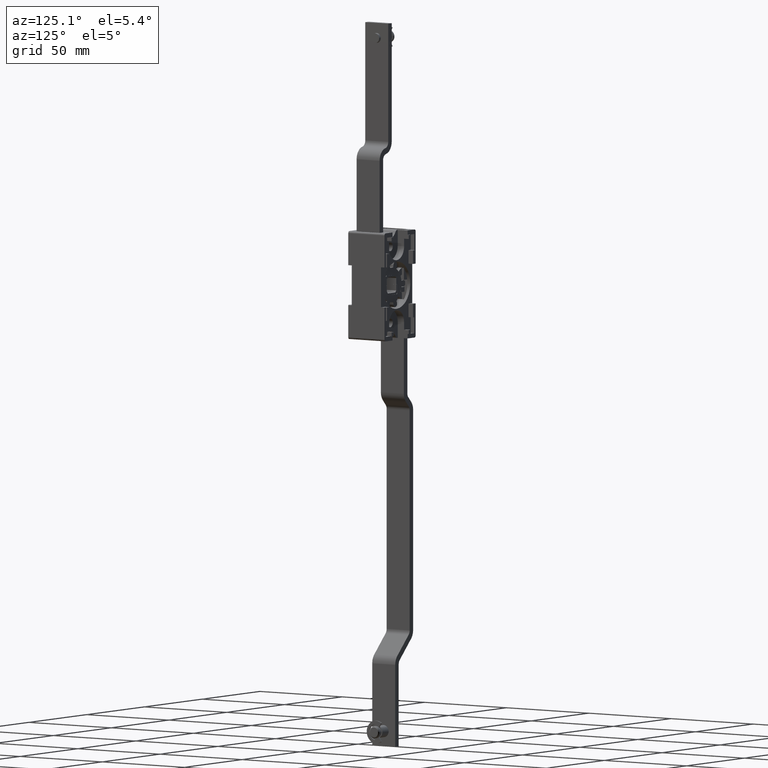
[diagram: clean part render]
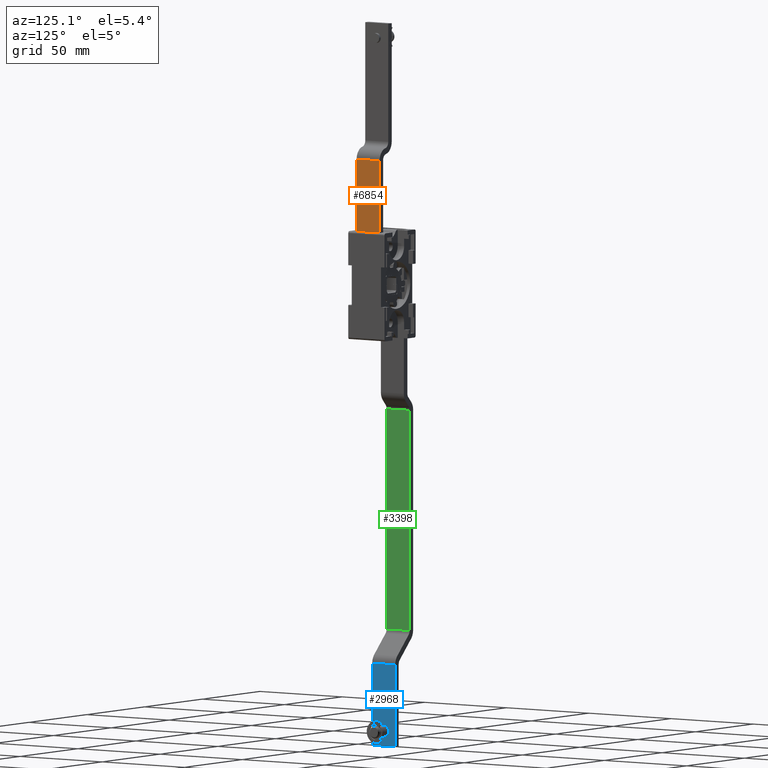
[diagram: same view with three faces highlighted in distinct colors, each labeled with its STEP entity id]
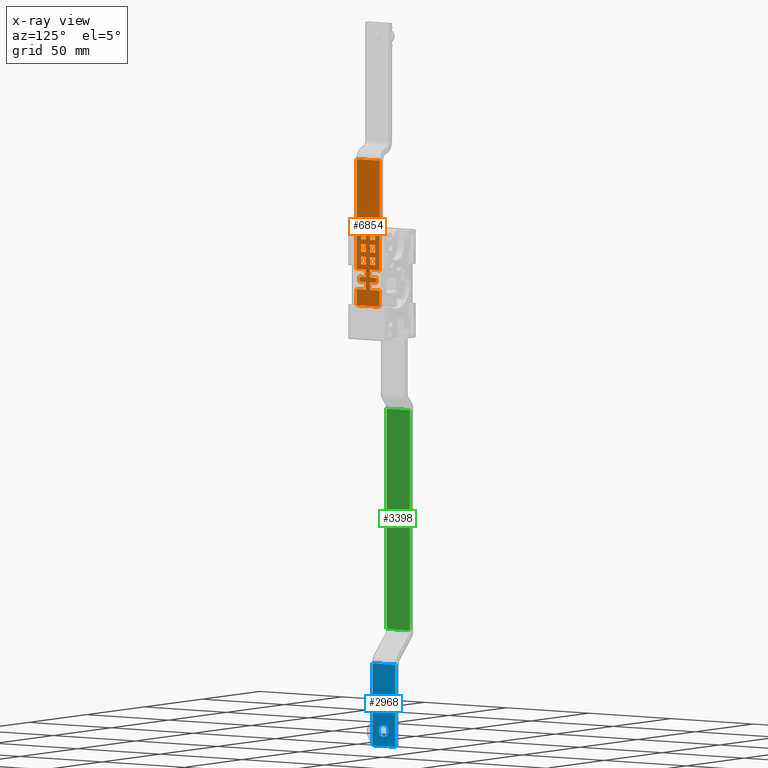
[diagram: x-ray of the same camera — body ghosted, the three highlighted faces saturated]
A machine part, auxiliary view with three faces highlighted in distinct colors.
The next image is the same camera in x-ray (body ghosted, the three faces saturated) — at least one of them is partly hidden behind the body in this view.
Their STEP definitions:

[orange] entity #6854 — the highlighted face is a freeform B-spline surface patch.
#4737=CARTESIAN_POINT('',(11.900000183740200,1.249999999999972,14.460006222166401));
#4738=VERTEX_POINT('',#4737);
#4739=CARTESIAN_POINT('',(11.900000183740159,1.250000000000000,10.660006222166400));
#4740=VERTEX_POINT('',#4739);
#4741=CARTESIAN_POINT('',(11.900000183740200,1.249999999999972,14.460006222166401));
#4742=CARTESIAN_POINT('',(11.900000183740159,1.250000000000000,10.660006222166400));
#4743=QUASI_UNIFORM_CURVE('',1,(#4741,#4742),.UNSPECIFIED.,.F.,.U.);
#4744=EDGE_CURVE('',#4738,#4740,#4743,.T.);
#4773=CARTESIAN_POINT('',(11.900000183740159,4.250000000000000,14.460006222166401));
#4774=VERTEX_POINT('',#4773);
#4775=CARTESIAN_POINT('',(11.900000183740159,4.250000000000000,14.460006222166401));
#4776=CARTESIAN_POINT('',(11.900000183740200,1.249999999999972,14.460006222166401));
#4777=QUASI_UNIFORM_CURVE('',1,(#4775,#4776),.UNSPECIFIED.,.F.,.U.);
#4778=EDGE_CURVE('',#4774,#4738,#4777,.T.);
#4801=CARTESIAN_POINT('',(11.900000183740159,4.250000000000000,10.660006222166400));
#4802=VERTEX_POINT('',#4801);
#4803=CARTESIAN_POINT('',(11.900000183740159,4.250000000000000,10.660006222166400));
#4804=CARTESIAN_POINT('',(11.900000183740159,4.250000000000000,14.460006222166401));
#4805=QUASI_UNIFORM_CURVE('',1,(#4803,#4804),.UNSPECIFIED.,.F.,.U.);
#4806=EDGE_CURVE('',#4802,#4774,#4805,.T.);
#4829=CARTESIAN_POINT('',(11.900000183740159,1.250000000000000,10.660006222166400));
#4830=CARTESIAN_POINT('',(11.900000183740159,4.250000000000000,10.660006222166400));
#4831=QUASI_UNIFORM_CURVE('',1,(#4829,#4830),.UNSPECIFIED.,.F.,.U.);
#4832=EDGE_CURVE('',#4740,#4802,#4831,.T.);
#4849=CARTESIAN_POINT('',(11.900000183740159,-4.250000000000000,10.660006222166400));
#4850=VERTEX_POINT('',#4849);
#4851=CARTESIAN_POINT('',(11.900000183740200,-4.250000000000000,14.460006222166401));
#4852=VERTEX_POINT('',#4851);
#4853=CARTESIAN_POINT('',(11.900000183740159,-4.250000000000000,10.660006222166400));
#4854=CARTESIAN_POINT('',(11.900000183740200,-4.250000000000000,14.460006222166401));
#4855=QUASI_UNIFORM_CURVE('',1,(#4853,#4854),.UNSPECIFIED.,.F.,.U.);
#4856=EDGE_CURVE('',#4850,#4852,#4855,.T.);
#4885=CARTESIAN_POINT('',(11.900000183740159,-1.250000000000000,10.660006222166400));
#4886=VERTEX_POINT('',#4885);
#4887=CARTESIAN_POINT('',(11.900000183740159,-1.250000000000000,10.660006222166400));
#4888=CARTESIAN_POINT('',(11.900000183740159,-4.250000000000000,10.660006222166400));
#4889=QUASI_UNIFORM_CURVE('',1,(#4887,#4888),.UNSPECIFIED.,.F.,.U.);
#4890=EDGE_CURVE('',#4886,#4850,#4889,.T.);
#4913=CARTESIAN_POINT('',(11.900000183740159,-1.250000000000000,14.460006222166401));
#4914=VERTEX_POINT('',#4913);
#4915=CARTESIAN_POINT('',(11.900000183740159,-1.250000000000000,14.460006222166401));
#4916=CARTESIAN_POINT('',(11.900000183740159,-1.250000000000000,10.660006222166400));
#4917=QUASI_UNIFORM_CURVE('',1,(#4915,#4916),.UNSPECIFIED.,.F.,.U.);
#4918=EDGE_CURVE('',#4914,#4886,#4917,.T.);
#4941=CARTESIAN_POINT('',(11.900000183740200,-4.250000000000000,14.460006222166401));
#4942=CARTESIAN_POINT('',(11.900000183740159,-1.250000000000000,14.460006222166401));
#4943=QUASI_UNIFORM_CURVE('',1,(#4941,#4942),.UNSPECIFIED.,.F.,.U.);
#4944=EDGE_CURVE('',#4852,#4914,#4943,.T.);
#4961=CARTESIAN_POINT('',(11.900000183740200,-1.250000000000084,20.740006222166400));
#4962=VERTEX_POINT('',#4961);
#4963=CARTESIAN_POINT('',(11.900000183740159,-4.250000000000000,20.740006222166400));
#4964=VERTEX_POINT('',#4963);
#4965=CARTESIAN_POINT('',(11.900000183740200,-1.250000000000084,20.740006222166400));
#4966=CARTESIAN_POINT('',(11.900000183740159,-4.250000000000000,20.740006222166400));
#4967=QUASI_UNIFORM_CURVE('',1,(#4965,#4966),.UNSPECIFIED.,.F.,.U.);
#4968=EDGE_CURVE('',#4962,#4964,#4967,.T.);
#4997=CARTESIAN_POINT('',(11.900000183740159,-1.250000000000000,16.940006222166399));
#4998=VERTEX_POINT('',#4997);
#4999=CARTESIAN_POINT('',(11.900000183740159,-1.250000000000000,16.940006222166399));
#5000=CARTESIAN_POINT('',(11.900000183740200,-1.250000000000084,20.740006222166400));
#5001=QUASI_UNIFORM_CURVE('',1,(#4999,#5000),.UNSPECIFIED.,.F.,.U.);
#5002=EDGE_CURVE('',#4998,#4962,#5001,.T.);
#5025=CARTESIAN_POINT('',(11.900000183740159,-4.250000000000000,16.940006222166399));
#5026=VERTEX_POINT('',#5025);
#5027=CARTESIAN_POINT('',(11.900000183740159,-4.250000000000000,16.940006222166399));
#5028=CARTESIAN_POINT('',(11.900000183740159,-1.250000000000000,16.940006222166399));
#5029=QUASI_UNIFORM_CURVE('',1,(#5027,#5028),.UNSPECIFIED.,.F.,.U.);
#5030=EDGE_CURVE('',#5026,#4998,#5029,.T.);
#5053=CARTESIAN_POINT('',(11.900000183740159,-4.250000000000000,20.740006222166400));
#5054=CARTESIAN_POINT('',(11.900000183740159,-4.250000000000000,16.940006222166399));
#5055=QUASI_UNIFORM_CURVE('',1,(#5053,#5054),.UNSPECIFIED.,.F.,.U.);
#5056=EDGE_CURVE('',#4964,#5026,#5055,.T.);
#5073=CARTESIAN_POINT('',(11.900000183740200,-1.250000000000084,27.020006222166401));
#5074=VERTEX_POINT('',#5073);
#5075=CARTESIAN_POINT('',(11.900000183740159,-4.250000000000000,27.020006222166401));
#5076=VERTEX_POINT('',#5075);
#5077=CARTESIAN_POINT('',(11.900000183740200,-1.250000000000084,27.020006222166401));
#5078=CARTESIAN_POINT('',(11.900000183740159,-4.250000000000000,27.020006222166401));
#5079=QUASI_UNIFORM_CURVE('',1,(#5077,#5078),.UNSPECIFIED.,.F.,.U.);
#5080=EDGE_CURVE('',#5074,#5076,#5079,.T.);
#5109=CARTESIAN_POINT('',(11.900000183740159,-1.250000000000000,23.220006222166401));
#5110=VERTEX_POINT('',#5109);
#5111=CARTESIAN_POINT('',(11.900000183740159,-1.250000000000000,23.220006222166401));
#5112=CARTESIAN_POINT('',(11.900000183740200,-1.250000000000084,27.020006222166401));
#5113=QUASI_UNIFORM_CURVE('',1,(#5111,#5112),.UNSPECIFIED.,.F.,.U.);
#5114=EDGE_CURVE('',#5110,#5074,#5113,.T.);
#5137=CARTESIAN_POINT('',(11.900000183740159,-4.250000000000000,23.220006222166401));
#5138=VERTEX_POINT('',#5137);
#5139=CARTESIAN_POINT('',(11.900000183740159,-4.250000000000000,23.220006222166401));
#5140=CARTESIAN_POINT('',(11.900000183740159,-1.250000000000000,23.220006222166401));
#5141=QUASI_UNIFORM_CURVE('',1,(#5139,#5140),.UNSPECIFIED.,.F.,.U.);
#5142=EDGE_CURVE('',#5138,#5110,#5141,.T.);
#5165=CARTESIAN_POINT('',(11.900000183740159,-4.250000000000000,27.020006222166401));
#5166=CARTESIAN_POINT('',(11.900000183740159,-4.250000000000000,23.220006222166401));
#5167=QUASI_UNIFORM_CURVE('',1,(#5165,#5166),.UNSPECIFIED.,.F.,.U.);
#5168=EDGE_CURVE('',#5076,#5138,#5167,.T.);
#5185=CARTESIAN_POINT('',(11.900000183740159,1.250000000000000,27.020006222166401));
#5186=VERTEX_POINT('',#5185);
#5187=CARTESIAN_POINT('',(11.900000183740200,4.250000000000000,27.020006222166401));
#5188=VERTEX_POINT('',#5187);
#5189=CARTESIAN_POINT('',(11.900000183740159,1.250000000000000,27.020006222166401));
#5190=CARTESIAN_POINT('',(11.900000183740200,4.250000000000000,27.020006222166401));
#5191=QUASI_UNIFORM_CURVE('',1,(#5189,#5190),.UNSPECIFIED.,.F.,.U.);
#5192=EDGE_CURVE('',#5186,#5188,#5191,.T.);
#5221=CARTESIAN_POINT('',(11.900000183740159,1.250000000000000,23.220006222166401));
#5222=VERTEX_POINT('',#5221);
#5223=CARTESIAN_POINT('',(11.900000183740159,1.250000000000000,23.220006222166401));
#5224=CARTESIAN_POINT('',(11.900000183740159,1.250000000000000,27.020006222166401));
#5225=QUASI_UNIFORM_CURVE('',1,(#5223,#5224),.UNSPECIFIED.,.F.,.U.);
#5226=EDGE_CURVE('',#5222,#5186,#5225,.T.);
#5249=CARTESIAN_POINT('',(11.900000183740159,4.250000000000000,23.220006222166401));
#5250=VERTEX_POINT('',#5249);
#5251=CARTESIAN_POINT('',(11.900000183740159,4.250000000000000,23.220006222166401));
#5252=CARTESIAN_POINT('',(11.900000183740159,1.250000000000000,23.220006222166401));
#5253=QUASI_UNIFORM_CURVE('',1,(#5251,#5252),.UNSPECIFIED.,.F.,.U.);
#5254=EDGE_CURVE('',#5250,#5222,#5253,.T.);
#5277=CARTESIAN_POINT('',(11.900000183740200,4.250000000000000,27.020006222166401));
#5278=CARTESIAN_POINT('',(11.900000183740159,4.250000000000000,23.220006222166401));
#5279=QUASI_UNIFORM_CURVE('',1,(#5277,#5278),.UNSPECIFIED.,.F.,.U.);
#5280=EDGE_CURVE('',#5188,#5250,#5279,.T.);
#5297=CARTESIAN_POINT('',(11.900000183740159,4.250000000000000,16.940006222166399));
#5298=VERTEX_POINT('',#5297);
#5299=CARTESIAN_POINT('',(11.900000183740200,1.250000000000084,16.940006222166399));
#5300=VERTEX_POINT('',#5299);
#5301=CARTESIAN_POINT('',(11.900000183740159,4.250000000000000,16.940006222166399));
#5302=CARTESIAN_POINT('',(11.900000183740200,1.250000000000084,16.940006222166399));
#5303=QUASI_UNIFORM_CURVE('',1,(#5301,#5302),.UNSPECIFIED.,.F.,.U.);
#5304=EDGE_CURVE('',#5298,#5300,#5303,.T.);
#5333=CARTESIAN_POINT('',(11.900000183740159,4.250000000000000,20.740006222166400));
#5334=VERTEX_POINT('',#5333);
#5335=CARTESIAN_POINT('',(11.900000183740159,4.250000000000000,20.740006222166400));
#5336=CARTESIAN_POINT('',(11.900000183740159,4.250000000000000,16.940006222166399));
#5337=QUASI_UNIFORM_CURVE('',1,(#5335,#5336),.UNSPECIFIED.,.F.,.U.);
#5338=EDGE_CURVE('',#5334,#5298,#5337,.T.);
#5361=CARTESIAN_POINT('',(11.900000183740159,1.250000000000000,20.740006222166400));
#5362=VERTEX_POINT('',#5361);
#5363=CARTESIAN_POINT('',(11.900000183740159,1.250000000000000,20.740006222166400));
#5364=CARTESIAN_POINT('',(11.900000183740159,4.250000000000000,20.740006222166400));
#5365=QUASI_UNIFORM_CURVE('',1,(#5363,#5364),.UNSPECIFIED.,.F.,.U.);
#5366=EDGE_CURVE('',#5362,#5334,#5365,.T.);
#5389=CARTESIAN_POINT('',(11.900000183740200,1.250000000000084,16.940006222166399));
#5390=CARTESIAN_POINT('',(11.900000183740159,1.250000000000000,20.740006222166400));
#5391=QUASI_UNIFORM_CURVE('',1,(#5389,#5390),.UNSPECIFIED.,.F.,.U.);
#5392=EDGE_CURVE('',#5300,#5362,#5391,.T.);
#5409=CARTESIAN_POINT('',(11.900000183740159,-1.250000000000000,-1.899993777833595));
#5410=VERTEX_POINT('',#5409);
#5411=CARTESIAN_POINT('',(11.900000183740159,-7.000000332482220,-1.899993777833595));
#5412=VERTEX_POINT('',#5411);
#5413=CARTESIAN_POINT('',(11.900000183740159,-1.250000000000000,-1.899993777833595));
#5414=CARTESIAN_POINT('',(11.900000183740159,-7.000000332482220,-1.899993777833595));
#5415=QUASI_UNIFORM_CURVE('',1,(#5413,#5414),.UNSPECIFIED.,.F.,.U.);
#5416=EDGE_CURVE('',#5410,#5412,#5415,.T.);
#5445=CARTESIAN_POINT('',(11.900000183740159,-1.250000000000000,1.900006222166405));
#5446=VERTEX_POINT('',#5445);
#5447=CARTESIAN_POINT('',(11.900000183740159,-1.250000000000000,1.900006222166405));
#5448=CARTESIAN_POINT('',(11.900000183740159,-1.250000000000000,-1.899993777833595));
#5449=QUASI_UNIFORM_CURVE('',1,(#5447,#5448),.UNSPECIFIED.,.F.,.U.);
#5450=EDGE_CURVE('',#5446,#5410,#5449,.T.);
#5473=CARTESIAN_POINT('',(11.900000183740159,-5.250000000000000,1.900006222166405));
#5474=VERTEX_POINT('',#5473);
#5475=CARTESIAN_POINT('',(11.900000183740159,-5.250000000000000,1.900006222166405));
#5476=CARTESIAN_POINT('',(11.900000183740159,-1.250000000000000,1.900006222166405));
#5477=QUASI_UNIFORM_CURVE('',1,(#5475,#5476),.UNSPECIFIED.,.F.,.U.);
#5478=EDGE_CURVE('',#5474,#5446,#5477,.T.);
#5501=CARTESIAN_POINT('',(11.900000183740159,-5.250000000000000,4.380006222166405));
#5502=VERTEX_POINT('',#5501);
#5503=CARTESIAN_POINT('',(11.900000183740159,-5.250000000000000,4.380006222166405));
#5504=CARTESIAN_POINT('',(11.900000183740159,-5.250000000000000,1.900006222166405));
#5505=QUASI_UNIFORM_CURVE('',1,(#5503,#5504),.UNSPECIFIED.,.F.,.U.);
#5506=EDGE_CURVE('',#5502,#5474,#5505,.T.);
#5529=CARTESIAN_POINT('',(11.900000183740159,-1.250000000000000,4.380006222166405));
#5530=VERTEX_POINT('',#5529);
#5531=CARTESIAN_POINT('',(11.900000183740159,-1.250000000000000,4.380006222166405));
#5532=CARTESIAN_POINT('',(11.900000183740159,-5.250000000000000,4.380006222166405));
#5533=QUASI_UNIFORM_CURVE('',1,(#5531,#5532),.UNSPECIFIED.,.F.,.U.);
#5534=EDGE_CURVE('',#5530,#5502,#5533,.T.);
#5557=CARTESIAN_POINT('',(11.900000183740159,-1.250000000000000,8.180006222166409));
#5558=VERTEX_POINT('',#5557);
#5559=CARTESIAN_POINT('',(11.900000183740159,-1.250000000000000,8.180006222166409));
#5560=CARTESIAN_POINT('',(11.900000183740159,-1.250000000000000,4.380006222166405));
#5561=QUASI_UNIFORM_CURVE('',1,(#5559,#5560),.UNSPECIFIED.,.F.,.U.);
#5562=EDGE_CURVE('',#5558,#5530,#5561,.T.);
#5585=CARTESIAN_POINT('',(11.900000183740159,-7.000000332482220,8.180006222166409));
#5586=VERTEX_POINT('',#5585);
#5587=CARTESIAN_POINT('',(11.900000183740159,-7.000000332482220,8.180006222166409));
#5588=CARTESIAN_POINT('',(11.900000183740159,-1.250000000000000,8.180006222166409));
#5589=QUASI_UNIFORM_CURVE('',1,(#5587,#5588),.UNSPECIFIED.,.F.,.U.);
#5590=EDGE_CURVE('',#5586,#5558,#5589,.T.);
#5613=CARTESIAN_POINT('',(11.900000183740159,1.250000000000000,4.380006222166405));
#5614=VERTEX_POINT('',#5613);
#5615=CARTESIAN_POINT('',(11.900000183740159,1.250000000000000,8.180006222166409));
#5616=VERTEX_POINT('',#5615);
#5617=CARTESIAN_POINT('',(11.900000183740159,1.250000000000000,4.380006222166405));
#5618=CARTESIAN_POINT('',(11.900000183740159,1.250000000000000,8.180006222166409));
#5619=QUASI_UNIFORM_CURVE('',1,(#5617,#5618),.UNSPECIFIED.,.F.,.U.);
#5620=EDGE_CURVE('',#5614,#5616,#5619,.T.);
#5649=CARTESIAN_POINT('',(11.900000183740159,5.250000000000000,4.380006222166400));
#5650=VERTEX_POINT('',#5649);
#5651=CARTESIAN_POINT('',(11.900000183740159,5.250000000000000,4.380006222166400));
#5652=CARTESIAN_POINT('',(11.900000183740159,1.250000000000000,4.380006222166405));
#5653=QUASI_UNIFORM_CURVE('',1,(#5651,#5652),.UNSPECIFIED.,.F.,.U.);
#5654=EDGE_CURVE('',#5650,#5614,#5653,.T.);
#5677=CARTESIAN_POINT('',(11.900000183740159,5.250000000000000,1.900006222166405));
#5678=VERTEX_POINT('',#5677);
#5679=CARTESIAN_POINT('',(11.900000183740159,5.250000000000000,1.900006222166405));
#5680=CARTESIAN_POINT('',(11.900000183740159,5.250000000000000,4.380006222166400));
#5681=QUASI_UNIFORM_CURVE('',1,(#5679,#5680),.UNSPECIFIED.,.F.,.U.);
#5682=EDGE_CURVE('',#5678,#5650,#5681,.T.);
#5705=CARTESIAN_POINT('',(11.900000183740159,1.250000000000000,1.900006222166405));
#5706=VERTEX_POINT('',#5705);
#5707=CARTESIAN_POINT('',(11.900000183740159,1.250000000000000,1.900006222166405));
#5708=CARTESIAN_POINT('',(11.900000183740159,5.250000000000000,1.900006222166405));
#5709=QUASI_UNIFORM_CURVE('',1,(#5707,#5708),.UNSPECIFIED.,.F.,.U.);
#5710=EDGE_CURVE('',#5706,#5678,#5709,.T.);
#5733=CARTESIAN_POINT('',(11.900000183740159,1.250000000000000,-1.899993777833595));
#5734=VERTEX_POINT('',#5733);
#5735=CARTESIAN_POINT('',(11.900000183740159,1.250000000000000,-1.899993777833595));
#5736=CARTESIAN_POINT('',(11.900000183740159,1.250000000000000,1.900006222166405));
#5737=QUASI_UNIFORM_CURVE('',1,(#5735,#5736),.UNSPECIFIED.,.F.,.U.);
#5738=EDGE_CURVE('',#5734,#5706,#5737,.T.);
#5761=CARTESIAN_POINT('',(11.900000183740200,7.000000332482100,-1.899993777833595));
#5762=VERTEX_POINT('',#5761);
#5763=CARTESIAN_POINT('',(11.900000183740200,7.000000332482100,-1.899993777833595));
#5764=CARTESIAN_POINT('',(11.900000183740159,1.250000000000000,-1.899993777833595));
#5765=QUASI_UNIFORM_CURVE('',1,(#5763,#5764),.UNSPECIFIED.,.F.,.U.);
#5766=EDGE_CURVE('',#5762,#5734,#5765,.T.);
#5789=CARTESIAN_POINT('',(11.900000183740159,7.000000332482220,8.180006222166409));
#5790=VERTEX_POINT('',#5789);
#5791=CARTESIAN_POINT('',(11.900000183740159,1.250000000000000,8.180006222166409));
#5792=CARTESIAN_POINT('',(11.900000183740159,7.000000332482220,8.180006222166409));
#5793=QUASI_UNIFORM_CURVE('',1,(#5791,#5792),.UNSPECIFIED.,.F.,.U.);
#5794=EDGE_CURVE('',#5616,#5790,#5793,.T.);
#6400=CARTESIAN_POINT('',(11.900000183740200,-7.000000332482269,-9.999993777833540));
#6401=VERTEX_POINT('',#6400);
#6414=CARTESIAN_POINT('',(11.900000183740200,7.000000332482050,-9.999993777833540));
#6415=VERTEX_POINT('',#6414);
#6421=CARTESIAN_POINT('',(11.900000183740200,7.000000332482050,-9.999993777833540));
#6422=CARTESIAN_POINT('',(11.900000183740200,-7.000000332482269,-9.999993777833540));
#6423=QUASI_UNIFORM_CURVE('',1,(#6421,#6422),.UNSPECIFIED.,.F.,.U.);
#6424=EDGE_CURVE('',#6415,#6401,#6423,.T.);
#6443=CARTESIAN_POINT('',(11.900000183740200,-7.000000332482269,63.041963102782802));
#6444=VERTEX_POINT('',#6443);
#6460=CARTESIAN_POINT('',(11.900000183740200,7.000000332482050,63.041963102782802));
#6461=VERTEX_POINT('',#6460);
#6462=CARTESIAN_POINT('',(11.900000183740200,7.000000332482050,63.041963102782802));
#6463=CARTESIAN_POINT('',(11.900000183740200,-7.000000332482269,63.041963102782802));
#6464=QUASI_UNIFORM_CURVE('',1,(#6462,#6463),.UNSPECIFIED.,.F.,.U.);
#6465=EDGE_CURVE('',#6461,#6444,#6464,.T.);
#6641=CARTESIAN_POINT('',(11.900000183740200,7.000000332482050,-9.999993777833540));
#6642=CARTESIAN_POINT('',(11.900000183740200,7.000000332482100,-1.899993777833595));
#6643=QUASI_UNIFORM_CURVE('',1,(#6641,#6642),.UNSPECIFIED.,.F.,.U.);
#6644=EDGE_CURVE('',#6415,#5762,#6643,.T.);
#6673=CARTESIAN_POINT('',(11.900000183740159,7.000000332482220,8.180006222166409));
#6674=CARTESIAN_POINT('',(11.900000183740200,7.000000332482050,63.041963102782802));
#6675=QUASI_UNIFORM_CURVE('',1,(#6673,#6674),.UNSPECIFIED.,.F.,.U.);
#6676=EDGE_CURVE('',#5790,#6461,#6675,.T.);
#6686=CARTESIAN_POINT('',(11.900000183740200,-7.000000332482269,-9.999993777833540));
#6687=CARTESIAN_POINT('',(11.900000183740159,-7.000000332482220,-1.899993777833595));
#6688=QUASI_UNIFORM_CURVE('',1,(#6686,#6687),.UNSPECIFIED.,.F.,.U.);
#6689=EDGE_CURVE('',#6401,#5412,#6688,.T.);
#6712=CARTESIAN_POINT('',(11.900000183740159,-7.000000332482220,8.180006222166409));
#6713=CARTESIAN_POINT('',(11.900000183740200,-7.000000332482269,63.041963102782802));
#6714=QUASI_UNIFORM_CURVE('',1,(#6712,#6713),.UNSPECIFIED.,.F.,.U.);
#6715=EDGE_CURVE('',#5586,#6444,#6714,.T.);
#6791=CARTESIAN_POINT('',(11.900000183740200,-7.699300469984519,66.690407336068830));
#6792=CARTESIAN_POINT('',(11.900000183740200,-7.699300469984519,-13.648441276349489));
#6793=CARTESIAN_POINT('',(11.900000183740200,7.699300720323989,66.690407336068830));
#6794=CARTESIAN_POINT('',(11.900000183740200,7.699300720323989,-13.648441276349489));
#6795=B_SPLINE_SURFACE_WITH_KNOTS('',1,1,((#6791,#6793),(#6792,#6794)),.UNSPECIFIED.,.F.,.F.,.U.,(2,2),(2,2),(0.0,80.338848612418317),(0.0,15.398601190308510),.UNSPECIFIED.);
#6796=ORIENTED_EDGE('',*,*,#6715,.F.);
#6797=ORIENTED_EDGE('',*,*,#5590,.T.);
#6798=ORIENTED_EDGE('',*,*,#5562,.T.);
#6799=ORIENTED_EDGE('',*,*,#5534,.T.);
#6800=ORIENTED_EDGE('',*,*,#5506,.T.);
#6801=ORIENTED_EDGE('',*,*,#5478,.T.);
#6802=ORIENTED_EDGE('',*,*,#5450,.T.);
#6803=ORIENTED_EDGE('',*,*,#5416,.T.);
#6804=ORIENTED_EDGE('',*,*,#6689,.F.);
#6805=ORIENTED_EDGE('',*,*,#6424,.F.);
#6806=ORIENTED_EDGE('',*,*,#6644,.T.);
#6807=ORIENTED_EDGE('',*,*,#5766,.T.);
#6808=ORIENTED_EDGE('',*,*,#5738,.T.);
#6809=ORIENTED_EDGE('',*,*,#5710,.T.);
#6810=ORIENTED_EDGE('',*,*,#5682,.T.);
#6811=ORIENTED_EDGE('',*,*,#5654,.T.);
#6812=ORIENTED_EDGE('',*,*,#5620,.T.);
#6813=ORIENTED_EDGE('',*,*,#5794,.T.);
#6814=ORIENTED_EDGE('',*,*,#6676,.T.);
#6815=ORIENTED_EDGE('',*,*,#6465,.T.);
#6816=EDGE_LOOP('',(#6796,#6797,#6798,#6799,#6800,#6801,#6802,#6803,#6804,#6805,#6806,#6807,#6808,#6809,#6810,#6811,#6812,#6813,#6814,#6815));
#6817=FACE_OUTER_BOUND('',#6816,.T.);
#6818=ORIENTED_EDGE('',*,*,#5192,.T.);
#6819=ORIENTED_EDGE('',*,*,#5280,.T.);
#6820=ORIENTED_EDGE('',*,*,#5254,.T.);
#6821=ORIENTED_EDGE('',*,*,#5226,.T.);
#6822=EDGE_LOOP('',(#6818,#6819,#6820,#6821));
#6823=FACE_BOUND('',#6822,.T.);
#6824=ORIENTED_EDGE('',*,*,#4832,.F.);
#6825=ORIENTED_EDGE('',*,*,#4744,.F.);
#6826=ORIENTED_EDGE('',*,*,#4778,.F.);
#6827=ORIENTED_EDGE('',*,*,#4806,.F.);
#6828=EDGE_LOOP('',(#6824,#6825,#6826,#6827));
#6829=FACE_BOUND('',#6828,.T.);
#6830=ORIENTED_EDGE('',*,*,#5304,.T.);
#6831=ORIENTED_EDGE('',*,*,#5392,.T.);
#6832=ORIENTED_EDGE('',*,*,#5366,.T.);
#6833=ORIENTED_EDGE('',*,*,#5338,.T.);
#6834=EDGE_LOOP('',(#6830,#6831,#6832,#6833));
#6835=FACE_BOUND('',#6834,.T.);
#6836=ORIENTED_EDGE('',*,*,#5168,.F.);
#6837=ORIENTED_EDGE('',*,*,#5080,.F.);
#6838=ORIENTED_EDGE('',*,*,#5114,.F.);
#6839=ORIENTED_EDGE('',*,*,#5142,.F.);
#6840=EDGE_LOOP('',(#6836,#6837,#6838,#6839));
#6841=FACE_BOUND('',#6840,.T.);
#6842=ORIENTED_EDGE('',*,*,#5056,.F.);
#6843=ORIENTED_EDGE('',*,*,#4968,.F.);
#6844=ORIENTED_EDGE('',*,*,#5002,.F.);
#6845=ORIENTED_EDGE('',*,*,#5030,.F.);
#6846=EDGE_LOOP('',(#6842,#6843,#6844,#6845));
#6847=FACE_BOUND('',#6846,.T.);
#6848=ORIENTED_EDGE('',*,*,#4856,.T.);
#6849=ORIENTED_EDGE('',*,*,#4944,.T.);
#6850=ORIENTED_EDGE('',*,*,#4918,.T.);
#6851=ORIENTED_EDGE('',*,*,#4890,.T.);
#6852=EDGE_LOOP('',(#6848,#6849,#6850,#6851));
#6853=FACE_BOUND('',#6852,.T.);
#6854=ADVANCED_FACE('',(#6817,#6823,#6829,#6835,#6841,#6847,#6853),#6795,.T.);

[blue] entity #2968 — the highlighted face is a freeform B-spline surface patch.
#282=CARTESIAN_POINT('',(-1.399999685036420,2.999885911654529,-223.526190226267090));
#283=VERTEX_POINT('',#282);
#289=CARTESIAN_POINT('',(-1.399999685036420,0.0,-220.500010473187700));
#290=VERTEX_POINT('',#289);
#291=CARTESIAN_POINT('',(-1.399999685036420,2.999885911654529,-223.526190226267150));
#292=CARTESIAN_POINT('',(-1.399999685036421,3.000000142492301,-223.513100671612560));
#293=CARTESIAN_POINT('',(-1.399999685036420,3.000000142492300,-223.500010615680000));
#294=CARTESIAN_POINT('',(-1.399999685036420,3.000000142492300,-220.500010473187790));
#295=CARTESIAN_POINT('',(-1.399999685036420,0.0,-220.500010473187700));
#303=(BOUNDED_CURVE()B_SPLINE_CURVE(2,(#291,#292,#293,#294,#295),.UNSPECIFIED.,.F.,.U.)B_SPLINE_CURVE_WITH_KNOTS((3,2,3),(0.248460105330501,0.250000000000000,0.500000000000000),.UNSPECIFIED.)CURVE()GEOMETRIC_REPRESENTATION_ITEM()RATIONAL_B_SPLINE_CURVE((0.996414027326252,0.998195901174467,1.0,0.707106781186547,1.0))REPRESENTATION_ITEM(''));
#304=EDGE_CURVE('',#283,#290,#303,.T.);
#306=CARTESIAN_POINT('',(-1.399999685036420,-2.976798782840513,-223.127626591542200));
#307=VERTEX_POINT('',#306);
#308=CARTESIAN_POINT('',(-1.399999685036420,0.0,-220.500010473187700));
#309=CARTESIAN_POINT('',(-1.399999685036421,-2.648095925850067,-220.500010473187810));
#310=CARTESIAN_POINT('',(-1.399999685036420,-2.976798782840513,-223.127626591542200));
#318=(BOUNDED_CURVE()B_SPLINE_CURVE(2,(#308,#309,#310),.UNSPECIFIED.,.F.,.U.)B_SPLINE_CURVE_WITH_KNOTS((3,3),(0.500000000000000,0.728526071005388),.UNSPECIFIED.)CURVE()GEOMETRIC_REPRESENTATION_ITEM()RATIONAL_B_SPLINE_CURVE((1.0,0.732265053921761,0.954005430228318))REPRESENTATION_ITEM(''));
#319=EDGE_CURVE('',#290,#307,#318,.T.);
#369=CARTESIAN_POINT('',(-1.399999685036420,0.0,-226.500010758172290));
#370=VERTEX_POINT('',#369);
#371=CARTESIAN_POINT('',(-1.399999685036421,-2.976798782840513,-223.127626591542170));
#372=CARTESIAN_POINT('',(-1.399999685036421,-3.000000142492300,-223.313095823988050));
#373=CARTESIAN_POINT('',(-1.399999685036420,-3.000000142492300,-223.500010615680000));
#374=CARTESIAN_POINT('',(-1.399999685036420,-3.000000142492300,-226.500010758172320));
#375=CARTESIAN_POINT('',(-1.399999685036420,0.0,-226.500010758172290));
#383=(BOUNDED_CURVE()B_SPLINE_CURVE(2,(#371,#372,#373,#374,#375),.UNSPECIFIED.,.F.,.U.)B_SPLINE_CURVE_WITH_KNOTS((3,2,3),(0.728526071005388,0.750000000000000,1.0),.UNSPECIFIED.)CURVE()GEOMETRIC_REPRESENTATION_ITEM()RATIONAL_B_SPLINE_CURVE((0.954005430228317,0.974841727264786,1.0,0.707106781186547,1.0))REPRESENTATION_ITEM(''));
#384=EDGE_CURVE('',#307,#370,#383,.T.);
#386=CARTESIAN_POINT('',(-1.399999685036420,0.0,-226.500010758172290));
#387=CARTESIAN_POINT('',(-1.399999685036420,2.973933767391154,-226.500010758172350));
#388=CARTESIAN_POINT('',(-1.399999685036421,2.999885911654529,-223.526190226267090));
#396=(BOUNDED_CURVE()B_SPLINE_CURVE(2,(#386,#387,#388),.UNSPECIFIED.,.F.,.U.)B_SPLINE_CURVE_WITH_KNOTS((3,3),(0.0,0.248460105330501),.UNSPECIFIED.)CURVE()GEOMETRIC_REPRESENTATION_ITEM()RATIONAL_B_SPLINE_CURVE((1.0,0.708910880012080,0.996414027326252))REPRESENTATION_ITEM(''));
#397=EDGE_CURVE('',#370,#283,#396,.T.);
#2717=CARTESIAN_POINT('',(-1.399999685036420,7.000000332482160,-189.985290398016500));
#2718=VERTEX_POINT('',#2717);
#2732=CARTESIAN_POINT('',(-1.399999685036420,7.000000332482160,-231.000010971911000));
#2733=VERTEX_POINT('',#2732);
#2734=CARTESIAN_POINT('',(-1.399999685036420,7.000000332482160,-231.000010971911000));
#2735=CARTESIAN_POINT('',(-1.399999685036420,7.000000332482160,-189.985290398016500));
#2736=QUASI_UNIFORM_CURVE('',1,(#2734,#2735),.UNSPECIFIED.,.F.,.U.);
#2737=EDGE_CURVE('',#2733,#2718,#2736,.T.);
#2916=CARTESIAN_POINT('',(-1.399999685036420,-7.000000332482160,-189.985290398016500));
#2917=VERTEX_POINT('',#2916);
#2931=CARTESIAN_POINT('',(-1.399999685036420,7.000000332482160,-189.985290398016500));
#2932=CARTESIAN_POINT('',(-1.399999685036420,-7.000000332482160,-189.985290398016500));
#2933=QUASI_UNIFORM_CURVE('',1,(#2931,#2932),.UNSPECIFIED.,.F.,.U.);
#2934=EDGE_CURVE('',#2718,#2917,#2933,.T.);
#2941=CARTESIAN_POINT('',(-1.399999685036420,-7.699300469984402,-187.936605038311510));
#2942=CARTESIAN_POINT('',(-1.399999685036420,-7.699300469984402,-233.048700365317900));
#2943=CARTESIAN_POINT('',(-1.399999685036420,7.699300720323921,-187.936605038311510));
#2944=CARTESIAN_POINT('',(-1.399999685036420,7.699300720323921,-233.048700365317900));
#2945=B_SPLINE_SURFACE_WITH_KNOTS('',1,1,((#2941,#2943),(#2942,#2944)),.UNSPECIFIED.,.F.,.F.,.U.,(2,2),(2,2),(0.0,45.112095327006386),(0.0,15.398601190308320),.UNSPECIFIED.);
#2946=CARTESIAN_POINT('',(-1.399999685036420,-7.000000332482160,-231.000010971911000));
#2947=VERTEX_POINT('',#2946);
#2948=CARTESIAN_POINT('',(-1.399999685036420,-7.000000332482160,-231.000010971911000));
#2949=CARTESIAN_POINT('',(-1.399999685036420,-7.000000332482160,-189.985290398016500));
#2950=QUASI_UNIFORM_CURVE('',1,(#2948,#2949),.UNSPECIFIED.,.F.,.U.);
#2951=EDGE_CURVE('',#2947,#2917,#2950,.T.);
#2952=ORIENTED_EDGE('',*,*,#2951,.F.);
#2953=CARTESIAN_POINT('',(-1.399999685036420,7.000000332482160,-231.000010971911000));
#2954=CARTESIAN_POINT('',(-1.399999685036420,-7.000000332482160,-231.000010971911000));
#2955=QUASI_UNIFORM_CURVE('',1,(#2953,#2954),.UNSPECIFIED.,.F.,.U.);
#2956=EDGE_CURVE('',#2733,#2947,#2955,.T.);
#2957=ORIENTED_EDGE('',*,*,#2956,.F.);
#2958=ORIENTED_EDGE('',*,*,#2737,.T.);
#2959=ORIENTED_EDGE('',*,*,#2934,.T.);
#2960=EDGE_LOOP('',(#2952,#2957,#2958,#2959));
#2961=FACE_OUTER_BOUND('',#2960,.T.);
#2962=ORIENTED_EDGE('',*,*,#397,.F.);
#2963=ORIENTED_EDGE('',*,*,#384,.F.);
#2964=ORIENTED_EDGE('',*,*,#319,.F.);
#2965=ORIENTED_EDGE('',*,*,#304,.F.);
#2966=EDGE_LOOP('',(#2962,#2963,#2964,#2965));
#2967=FACE_BOUND('',#2966,.T.);
#2968=ADVANCED_FACE('',(#2961,#2967),#2945,.T.);

[green] entity #3398 — the highlighted face is a freeform B-spline surface patch.
#2673=CARTESIAN_POINT('',(-13.900000278754520,7.000000332482160,-63.742643714732608));
#2674=VERTEX_POINT('',#2673);
#2688=CARTESIAN_POINT('',(-13.900000278754600,7.000000332482160,-173.757367565931500));
#2689=VERTEX_POINT('',#2688);
#2690=CARTESIAN_POINT('',(-13.900000278754600,7.000000332482160,-173.757367565931500));
#2691=CARTESIAN_POINT('',(-13.900000278754520,7.000000332482160,-63.742643714732608));
#2692=QUASI_UNIFORM_CURVE('',1,(#2690,#2691),.UNSPECIFIED.,.F.,.U.);
#2693=EDGE_CURVE('',#2689,#2674,#2692,.T.);
#2849=CARTESIAN_POINT('',(-13.900000278754600,-7.000000332482160,-173.757367565931500));
#2850=VERTEX_POINT('',#2849);
#2872=CARTESIAN_POINT('',(-13.900000278754600,7.000000332482160,-173.757367565931500));
#2873=CARTESIAN_POINT('',(-13.900000278754600,-7.000000332482160,-173.757367565931500));
#2874=QUASI_UNIFORM_CURVE('',1,(#2872,#2873),.UNSPECIFIED.,.F.,.U.);
#2875=EDGE_CURVE('',#2689,#2850,#2874,.T.);
#3358=CARTESIAN_POINT('',(-13.900000278754520,-7.000000332482160,-63.742643714732608));
#3359=VERTEX_POINT('',#3358);
#3373=CARTESIAN_POINT('',(-13.900000278754520,7.000000332482160,-63.742643714732608));
#3374=CARTESIAN_POINT('',(-13.900000278754520,-7.000000332482160,-63.742643714732608));
#3375=QUASI_UNIFORM_CURVE('',1,(#3373,#3374),.UNSPECIFIED.,.F.,.U.);
#3376=EDGE_CURVE('',#2674,#3359,#3375,.T.);
#3383=CARTESIAN_POINT('',(-13.900000278754501,-7.699300469984402,-58.247409504334613));
#3384=CARTESIAN_POINT('',(-13.900000278754501,-7.699300469984402,-179.252605710762590));
#3385=CARTESIAN_POINT('',(-13.900000278754501,7.699300720323923,-58.247409504334613));
#3386=CARTESIAN_POINT('',(-13.900000278754501,7.699300720323923,-179.252605710762590));
#3387=B_SPLINE_SURFACE_WITH_KNOTS('',1,1,((#3383,#3385),(#3384,#3386)),.UNSPECIFIED.,.F.,.F.,.U.,(2,2),(2,2),(0.0,121.005196206428000),(0.0,15.398601190308330),.UNSPECIFIED.);
#3388=CARTESIAN_POINT('',(-13.900000278754600,-7.000000332482160,-173.757367565931500));
#3389=CARTESIAN_POINT('',(-13.900000278754520,-7.000000332482160,-63.742643714732608));
#3390=QUASI_UNIFORM_CURVE('',1,(#3388,#3389),.UNSPECIFIED.,.F.,.U.);
#3391=EDGE_CURVE('',#2850,#3359,#3390,.T.);
#3392=ORIENTED_EDGE('',*,*,#3391,.F.);
#3393=ORIENTED_EDGE('',*,*,#2875,.F.);
#3394=ORIENTED_EDGE('',*,*,#2693,.T.);
#3395=ORIENTED_EDGE('',*,*,#3376,.T.);
#3396=EDGE_LOOP('',(#3392,#3393,#3394,#3395));
#3397=FACE_OUTER_BOUND('',#3396,.T.);
#3398=ADVANCED_FACE('',(#3397),#3387,.T.);